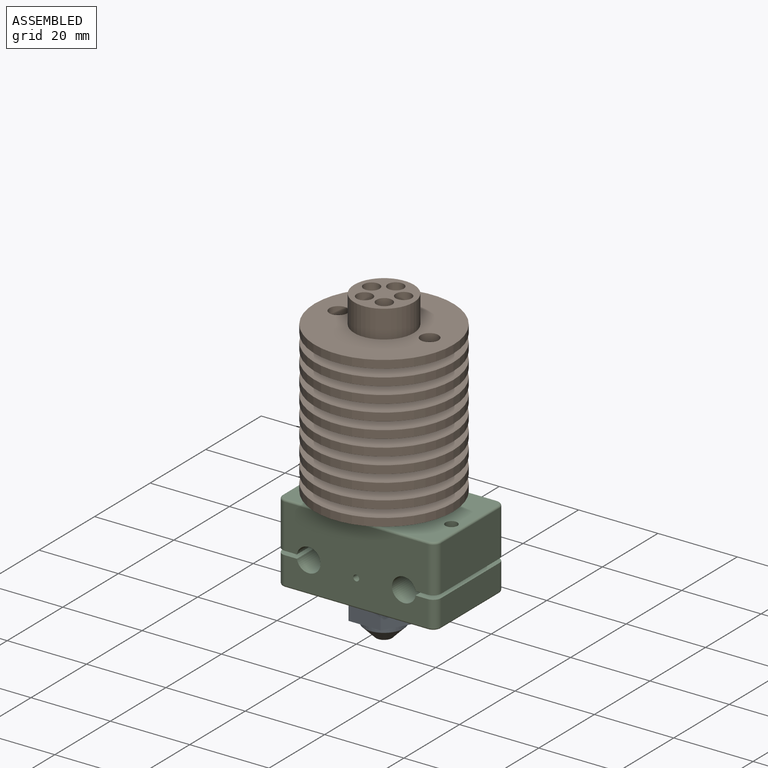
[diagram: assembled view]
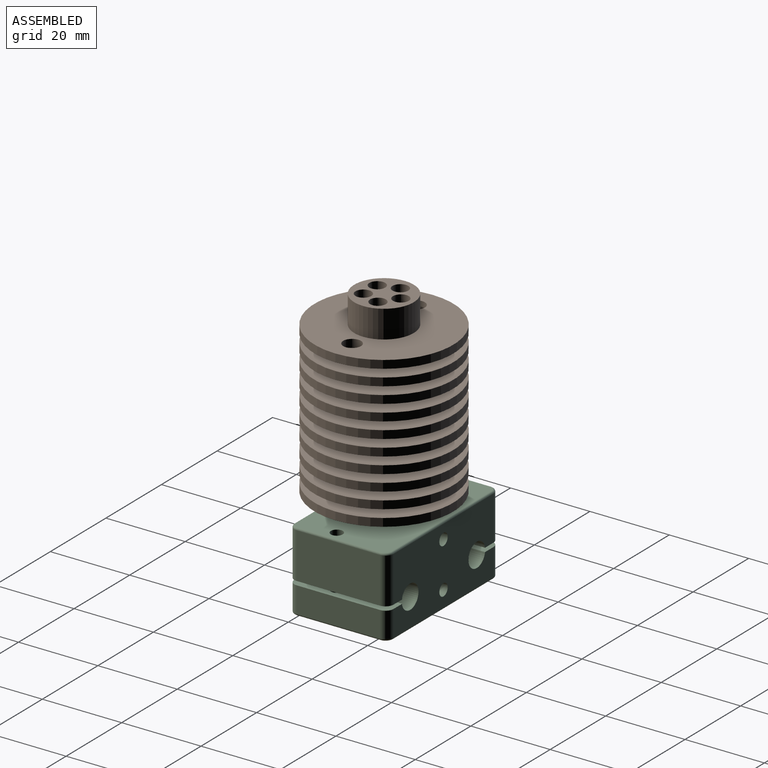
[diagram: assembled view, second angle]
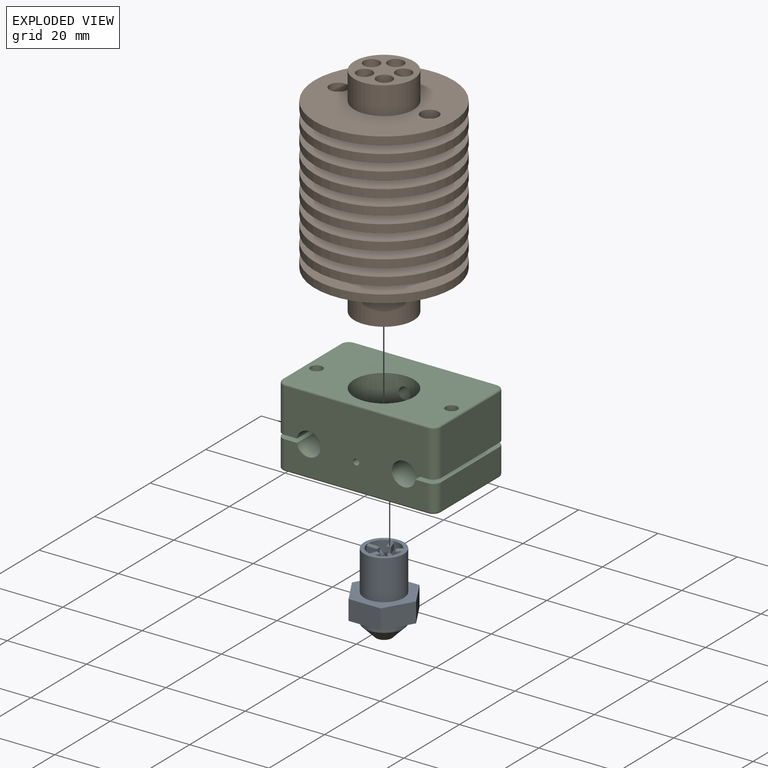
[diagram: exploded view]
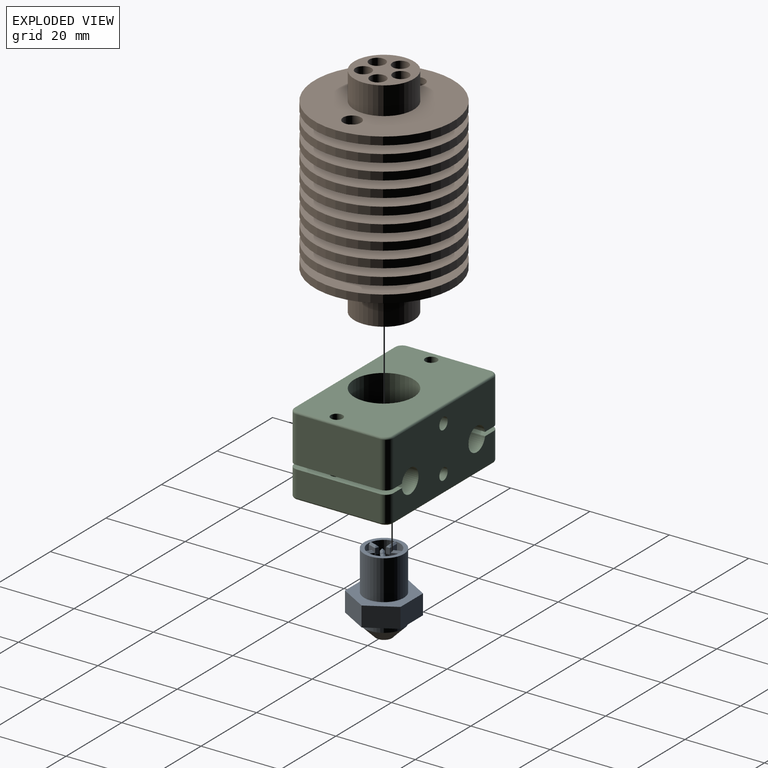
[diagram: exploded view, second angle]
ASSEMBLY  parts=3 mates=3
PART A: 176 faces, bbox 16.2x14x20 mm
  f0: cylinder r=4mm len=8mm, axis (0,0,1), area 143.9mm2, adj f1,f2,f3,f4,f6,f17,f22,f23
  f1: cone r=3.3mm half-angle=57deg, axis (0,0,1), area 3.5mm2, adj f0,f5,f139,f159
  f2: cone r=3.3mm half-angle=57deg, axis (0,0,1), area 3.1mm2, adj f0,f5,f154,f158
  f3: cone r=3.3mm half-angle=57deg, axis (0,0,1), area 2.6mm2, adj f0,f5,f149,f153
  f4: cone r=3.3mm half-angle=57deg, axis (0,0,1), area 2.6mm2, adj f0,f5,f144,f148
  f5: cone r=0.75mm half-angle=24deg, axis (0,0,1), area 75mm2, adj f1,f2,f3,f4,f6,f7,f136,f137
  f6: cone r=3.3mm half-angle=57deg, axis (0,0,1), area 3.1mm2, adj f0,f5,f137,f143
  f7: cylinder r=0.88mm len=7.1mm, axis (0,0,-1), area 39.1mm2, adj f5,f19
  f8: plane 8.08x5mm, normal (0,1,0), area 40.4mm2, adj f9,f13,f14,f15
  f9: plane 7x5mm, normal (-0.87,0.5,0), area 40.4mm2, adj f8,f10,f14,f15
  f10: plane 7x5mm, normal (-0.87,-0.5,0), area 40.4mm2, adj f9,f11,f14,f15
  f11: plane 8.08x5mm, normal (0,-1,0), area 40.4mm2, adj f10,f12,f14,f15
  f12: plane 7x5mm, normal (0.87,-0.5,0), area 40.4mm2, adj f11,f13,f14,f15
  f13: plane 7x5mm, normal (0.87,0.5,0), area 40.4mm2, adj f8,f12,f14,f15
  f14: plane 16.17x14mm, normal (0,0,1), area 91.2mm2, adj f8,f9,f10,f11,f12,f13,f16
  f15: plane 16.17x14mm, normal (0,0,-1), area 91.2mm2, adj f8,f9,f10,f11,f12,f13,f18
  f16: cylinder r=5mm len=10mm, axis (0,0,-1), area 314.2mm2, adj f14,f17
  f17: plane 10x10mm, normal (0,0,1), area 30mm2, adj f0,f16,f41,f42,f43,f44,f45,f46
  f18: cylinder r=5mm len=10mm, axis (0,0,1), area 62.8mm2, adj f15,f20
  f19: plane 4x4mm, normal (0,0,-1), area 10.2mm2, adj f7,f20
  f20: cone r=5mm half-angle=45deg, axis (0,0,1), area 93.3mm2, adj f18,f19
  f21: plane 1.6x1mm, normal (1,0,0), area 1.6mm2, adj f22,f23,f24,f51
  f22: plane 2.57x1.6mm, normal (0,1,0), area 4.1mm2, adj f0,f21,f24,f52
  f23: plane 2.57x1.6mm, normal (0,-1,0), area 4.1mm2, adj f0,f21,f24,f50
  f24: plane 2.6x1mm, normal (0,0,-1), area 2.6mm2, adj f0,f21,f22,f23
  f25: plane 1.6x0.95mm, normal (0.31,0.95,0), area 1.6mm2, adj f26,f27,f28,f54
  f26: plane 2.14x1.6mm, normal (-0.95,0.31,0), area 3.6mm2, adj f0,f25,f28,f55
  f27: plane 2.03x1.6mm, normal (0.95,-0.31,0), area 3.4mm2, adj f0,f25,f28,f53
  f28: plane 2.34x1.65mm, normal (0,0,-1), area 2.2mm2, adj f0,f25,f26,f27
  f29: plane 1.6x0.81mm, normal (-0.81,0.59,0), area 1.6mm2, adj f30,f31,f32,f48
  f30: plane 1.6x1.37mm, normal (-0.59,-0.81,0), area 2.7mm2, adj f0,f29,f32,f49
  f31: plane 1.6x1.31mm, normal (0.59,0.81,0), area 2.6mm2, adj f0,f29,f32,f47
  f32: plane 1.9x1.8mm, normal (0,0,-1), area 1.7mm2, adj f0,f29,f30,f31
  f33: plane 1.6x0.81mm, normal (-0.81,-0.59,0), area 1.6mm2, adj f34,f35,f36,f42
  f34: plane 1.6x1.31mm, normal (0.59,-0.81,0), area 2.6mm2, adj f0,f33,f36,f43
  f35: plane 1.6x1.37mm, normal (-0.59,0.81,0), area 2.7mm2, adj f0,f33,f36,f41
  f36: plane 1.9x1.8mm, normal (0,0,-1), area 1.7mm2, adj f0,f33,f34,f35
  f37: plane 1.6x0.95mm, normal (0.31,-0.95,0), area 1.6mm2, adj f38,f39,f40,f46
  f38: plane 2.03x1.6mm, normal (0.95,0.31,0), area 3.4mm2, adj f0,f37,f40,f44
  f39: plane 2.14x1.6mm, normal (-0.95,-0.31,0), area 3.6mm2, adj f0,f37,f40,f45
  f40: plane 2.34x1.65mm, normal (0,0,-1), area 2.2mm2, adj f0,f37,f38,f39
  f41: plane 1.6x1.08mm, normal (-0.42,0.57,0.71), area 0.8mm2, adj f0,f17,f35,f42
  f42: plane 0.81x0.68mm, normal (-0.57,-0.42,0.71), area 0.3mm2, adj f17,f33,f41,f43
  f43: plane 1.31x1.31mm, normal (0.42,-0.57,0.71), area 0.8mm2, adj f0,f17,f34,f42
  f44: plane 2.03x1.07mm, normal (0.67,0.22,0.71), area 1.1mm2, adj f0,f17,f38,f46
  f45: plane 2.25x0.95mm, normal (-0.67,-0.22,0.71), area 1.2mm2, adj f0,f17,f39,f46
  f46: plane 0.95x0.57mm, normal (0.22,-0.67,0.71), area 0.3mm2, adj f17,f37,f44,f45
  f47: plane 1.31x1.31mm, normal (0.42,0.57,0.71), area 0.8mm2, adj f0,f17,f31,f48
  f48: plane 0.81x0.68mm, normal (-0.57,0.42,0.71), area 0.3mm2, adj f17,f29,f47,f49
  f49: plane 1.6x1.08mm, normal (-0.42,-0.57,0.71), area 0.8mm2, adj f0,f17,f30,f48
  f50: plane 2.6x0.4mm, normal (0,-0.71,0.71), area 1.4mm2, adj f0,f17,f23,f51
  f51: plane 1x0.4mm, normal (0.71,0,0.71), area 0.3mm2, adj f17,f21,f50,f52
  f52: plane 2.6x0.4mm, normal (0,0.71,0.71), area 1.4mm2, adj f0,f17,f22,f51
  f53: plane 2.03x1.07mm, normal (0.67,-0.22,0.71), area 1.1mm2, adj f0,f17,f27,f54
  f54: plane 0.95x0.57mm, normal (0.22,0.67,0.71), area 0.3mm2, adj f17,f25,f53,f55
  f55: plane 2.25x0.95mm, normal (-0.67,0.22,0.71), area 1.2mm2, adj f0,f17,f26,f54
  f56: plane 1.96x1.6mm, normal (0.59,-0.81,0), area 3.9mm2, adj f0,f57,f59,f95
  f57: plane 1.6x0.81mm, normal (0.81,0.59,0), area 1.6mm2, adj f56,f58,f59,f94
  f58: plane 2.02x1.6mm, normal (-0.59,0.81,0), area 4mm2, adj f0,f57,f59,f93
  f59: plane 2.61x2.23mm, normal (0,0,-1), area 2.5mm2, adj f0,f56,f57,f58
  f60: plane 1.82x1.39mm, normal (0,0,1), area 0.4mm2, adj f0,f93,f94,f95
  f61: plane 1.6x0.95mm, normal (-0.31,0.95,0), area 1.6mm2, adj f62,f63,f64,f82
  f62: plane 1.85x1.6mm, normal (-0.95,-0.31,0), area 3.1mm2, adj f0,f61,f64,f83
  f63: plane 1.74x1.6mm, normal (0.95,0.31,0), area 2.9mm2, adj f0,f61,f64,f81
  f64: plane 2.16x1.52mm, normal (0,0,-1), area 1.9mm2, adj f0,f61,f62,f63
  f65: plane 1.52x0.66mm, normal (0,0,1), area 0.3mm2, adj f0,f81,f82,f83
  f66: plane 1.6x1mm, normal (-1,0,0), area 1.6mm2, adj f67,f68,f69,f85
  f67: plane 1.6x1.57mm, normal (0,-1,0), area 2.5mm2, adj f0,f66,f69,f86
  f68: plane 1.6x1.57mm, normal (0,1,0), area 2.5mm2, adj f0,f66,f69,f84
  f69: plane 1.6x1mm, normal (0,0,-1), area 1.6mm2, adj f0,f66,f67,f68
  f70: plane 1.2x0.2mm, normal (0,0,1), area 0.2mm2, adj f0,f84,f85,f86
  f71: plane 1.6x0.95mm, normal (-0.31,-0.95,0), area 1.6mm2, adj f72,f73,f74,f88
  f72: plane 1.74x1.6mm, normal (0.95,-0.31,0), area 2.9mm2, adj f0,f71,f74,f89
  f73: plane 1.85x1.6mm, normal (-0.95,0.31,0), area 3.1mm2, adj f0,f71,f74,f87
  f74: plane 2.16x1.52mm, normal (0,0,-1), area 1.9mm2, adj f0,f71,f72,f73
  f75: plane 1.52x0.66mm, normal (0,0,1), area 0.3mm2, adj f0,f87,f88,f89
  f76: plane 1.6x0.81mm, normal (0.81,-0.59,0), area 1.6mm2, adj f77,f78,f79,f91
  f77: plane 1.96x1.6mm, normal (0.59,0.81,0), area 3.9mm2, adj f0,f76,f79,f92
  f78: plane 2.02x1.6mm, normal (-0.59,-0.81,0), area 4mm2, adj f0,f76,f79,f90
  f79: plane 2.61x2.23mm, normal (0,0,-1), area 2.5mm2, adj f0,f76,f77,f78
  f80: plane 1.82x1.39mm, normal (0,0,1), area 0.4mm2, adj f0,f90,f91,f92
  f81: plane 1.94x0.82mm, normal (0.67,0.22,0.71), area 0.9mm2, adj f0,f63,f65,f82
  f82: plane 0.95x0.57mm, normal (-0.22,0.67,0.71), area 0.3mm2, adj f61,f65,f81,f83
  f83: plane 1.85x0.98mm, normal (-0.67,-0.22,0.71), area 1mm2, adj f0,f62,f65,f82
  f84: plane 1.6x0.4mm, normal (0,0.71,0.71), area 0.8mm2, adj f0,f68,f70,f85
  f85: plane 1x0.4mm, normal (-0.71,0,0.71), area 0.3mm2, adj f66,f70,f84,f86
  f86: plane 1.6x0.4mm, normal (0,-0.71,0.71), area 0.8mm2, adj f0,f67,f70,f85
  f87: plane 1.85x0.98mm, normal (-0.67,0.22,0.71), area 1mm2, adj f0,f73,f75,f88
  f88: plane 0.95x0.57mm, normal (-0.22,-0.67,0.71), area 0.3mm2, adj f71,f75,f87,f89
  f89: plane 1.94x0.82mm, normal (0.67,-0.22,0.71), area 0.9mm2, adj f0,f72,f75,f88
  f90: plane 2.02x1.79mm, normal (-0.42,-0.57,0.71), area 1.3mm2, adj f0,f78,f80,f91
  f91: plane 0.81x0.68mm, normal (0.57,-0.42,0.71), area 0.3mm2, adj f76,f80,f90,f92
  f92: plane 2.25x1.52mm, normal (0.42,0.57,0.71), area 1.3mm2, adj f0,f77,f80,f91
  f93: plane 2.02x1.79mm, normal (-0.42,0.57,0.71), area 1.3mm2, adj f0,f58,f60,f94
  f94: plane 0.81x0.68mm, normal (0.57,0.42,0.71), area 0.3mm2, adj f57,f60,f93,f95
  f95: plane 2.25x1.52mm, normal (0.42,-0.57,0.71), area 1.3mm2, adj f0,f56,f60,f94
  f96: plane 1.6x1mm, normal (1,0,0), area 1.6mm2, adj f97,f98,f99,f134
  f97: plane 2.57x1.6mm, normal (0,1,0), area 4.1mm2, adj f0,f96,f99,f133
  f98: plane 2.57x1.6mm, normal (0,-1,0), area 4.1mm2, adj f0,f96,f99,f135
  f99: plane 2.6x1mm, normal (0,0,-1), area 2.6mm2, adj f0,f96,f97,f98
  f100: plane 2.2x0.2mm, normal (0,0,1), area 0.4mm2, adj f0,f133,f134,f135
  f101: plane 1.6x0.95mm, normal (0.31,0.95,0), area 1.6mm2, adj f102,f103,f104,f128
  f102: plane 2.14x1.6mm, normal (-0.95,0.31,0), area 3.6mm2, adj f0,f101,f104,f127
  f103: plane 2.03x1.6mm, normal (0.95,-0.31,0), area 3.4mm2, adj f0,f101,f104,f129
  f104: plane 2.34x1.65mm, normal (0,0,-1), area 2.2mm2, adj f0,f101,f102,f103
  f105: plane 1.79x0.76mm, normal (0,0,1), area 0.4mm2, adj f0,f127,f128,f129
  f106: plane 1.6x0.81mm, normal (-0.81,0.59,0), area 1.6mm2, adj f107,f108,f109,f125
  f107: plane 1.6x1.37mm, normal (-0.59,-0.81,0), area 2.7mm2, adj f0,f106,f109,f124
  f108: plane 1.6x1.31mm, normal (0.59,0.81,0), area 2.6mm2, adj f0,f106,f109,f126
  f109: plane 1.9x1.8mm, normal (0,0,-1), area 1.7mm2, adj f0,f106,f107,f108
  f110: plane 1.15x0.92mm, normal (0,0,1), area 0.3mm2, adj f0,f124,f125,f126
  f111: plane 1.6x0.81mm, normal (-0.81,-0.59,0), area 1.6mm2, adj f112,f113,f114,f122
  f112: plane 1.6x1.31mm, normal (0.59,-0.81,0), area 2.6mm2, adj f0,f111,f114,f121
  f113: plane 1.6x1.37mm, normal (-0.59,0.81,0), area 2.7mm2, adj f0,f111,f114,f123
  f114: plane 1.9x1.8mm, normal (0,0,-1), area 1.7mm2, adj f0,f111,f112,f113
  f115: plane 1.15x0.92mm, normal (0,0,1), area 0.3mm2, adj f0,f121,f122,f123
  f116: plane 1.6x0.95mm, normal (0.31,-0.95,0), area 1.6mm2, adj f117,f118,f119,f131
  f117: plane 2.03x1.6mm, normal (0.95,0.31,0), area 3.4mm2, adj f0,f116,f119,f132
  f118: plane 2.14x1.6mm, normal (-0.95,-0.31,0), area 3.6mm2, adj f0,f116,f119,f130
  f119: plane 2.34x1.65mm, normal (0,0,-1), area 2.2mm2, adj f0,f116,f117,f118
  f120: plane 1.79x0.76mm, normal (0,0,1), area 0.4mm2, adj f0,f130,f131,f132
  f121: plane 1.31x1.31mm, normal (0.42,-0.57,0.71), area 0.8mm2, adj f0,f112,f115,f122
  f122: plane 0.81x0.68mm, normal (-0.57,-0.42,0.71), area 0.3mm2, adj f111,f115,f121,f123
  f123: plane 1.6x1.08mm, normal (-0.42,0.57,0.71), area 0.8mm2, adj f0,f113,f115,f122
  f124: plane 1.6x1.08mm, normal (-0.42,-0.57,0.71), area 0.8mm2, adj f0,f107,f110,f125
  f125: plane 0.81x0.68mm, normal (-0.57,0.42,0.71), area 0.3mm2, adj f106,f110,f124,f126
  f126: plane 1.31x1.31mm, normal (0.42,0.57,0.71), area 0.8mm2, adj f0,f108,f110,f125
  f127: plane 2.25x0.95mm, normal (-0.67,0.22,0.71), area 1.2mm2, adj f0,f102,f105,f128
  f128: plane 0.95x0.57mm, normal (0.22,0.67,0.71), area 0.3mm2, adj f101,f105,f127,f129
  f129: plane 2.03x1.07mm, normal (0.67,-0.22,0.71), area 1.1mm2, adj f0,f103,f105,f128
  f130: plane 2.25x0.95mm, normal (-0.67,-0.22,0.71), area 1.2mm2, adj f0,f118,f120,f131
  f131: plane 0.95x0.57mm, normal (0.22,-0.67,0.71), area 0.3mm2, adj f116,f120,f130,f132
  f132: plane 2.03x1.07mm, normal (0.67,0.22,0.71), area 1.1mm2, adj f0,f117,f120,f131
  f133: plane 2.6x0.4mm, normal (0,0.71,0.71), area 1.4mm2, adj f0,f97,f100,f134
  f134: plane 1x0.4mm, normal (0.71,0,0.71), area 0.3mm2, adj f96,f100,f133,f135
  f135: plane 2.6x0.4mm, normal (0,-0.71,0.71), area 1.4mm2, adj f0,f98,f100,f134
  f136: plane 1.84x1.66mm, normal (0,0,-1), area 1.5mm2, adj f5,f137,f138,f139
  f137: plane 1.98x1.62mm, normal (0.59,-0.81,0), area 3.3mm2, adj f0,f5,f6,f136,f138,f173
  f138: plane 1.6x0.81mm, normal (0.81,0.59,0), area 1.6mm2, adj f136,f137,f139,f174
  f139: plane 2.03x1.6mm, normal (-0.59,0.81,0), area 3.4mm2, adj f0,f1,f5,f136,f138,f175
  f140: plane 1.82x1.39mm, normal (0,0,1), area 0.4mm2, adj f0,f173,f174,f175
  f141: plane 1.26x1.21mm, normal (0,0,-1), area 0.9mm2, adj f5,f142,f143,f144
  f142: plane 1.6x0.95mm, normal (-0.31,0.95,0), area 1.6mm2, adj f141,f143,f144,f171
  f143: plane 1.85x1.6mm, normal (-0.95,-0.31,0), area 2.5mm2, adj f0,f5,f6,f141,f142,f172
  f144: plane 1.75x1.62mm, normal (0.95,0.31,0), area 2.3mm2, adj f0,f4,f5,f141,f142,f170
  f145: plane 1.52x0.66mm, normal (0,0,1), area 0.3mm2, adj f0,f170,f171,f172
  f146: plane 1x0.65mm, normal (0,0,-1), area 0.6mm2, adj f5,f147,f148,f149
  f147: plane 1.6x1mm, normal (-1,0,0), area 1.6mm2, adj f146,f148,f149,f162
  f148: plane 1.61x1.58mm, normal (0,-1,0), area 1.9mm2, adj f0,f4,f5,f146,f147,f161
  f149: plane 1.61x1.58mm, normal (0,1,0), area 1.9mm2, adj f0,f3,f5,f146,f147,f163
  f150: plane 1.2x0.2mm, normal (0,0,1), area 0.2mm2, adj f0,f161,f162,f163
  f151: plane 1.26x1.21mm, normal (0,0,-1), area 0.9mm2, adj f5,f152,f153,f154
  f152: plane 1.6x0.95mm, normal (-0.31,-0.95,0), area 1.6mm2, adj f151,f153,f154,f165
  f153: plane 1.75x1.62mm, normal (0.95,-0.31,0), area 2.3mm2, adj f0,f3,f5,f151,f152,f166
  f154: plane 1.85x1.6mm, normal (-0.95,0.31,0), area 2.5mm2, adj f0,f2,f5,f151,f152,f164
  f155: plane 1.52x0.66mm, normal (0,0,1), area 0.3mm2, adj f0,f164,f165,f166
  f156: plane 1.84x1.66mm, normal (0,0,-1), area 1.5mm2, adj f5,f157,f158,f159
  f157: plane 1.6x0.81mm, normal (0.81,-0.59,0), area 1.6mm2, adj f156,f158,f159,f168
  f158: plane 1.98x1.62mm, normal (0.59,0.81,0), area 3.3mm2, adj f0,f2,f5,f156,f157,f169
  f159: plane 2.03x1.6mm, normal (-0.59,-0.81,0), area 3.4mm2, adj f0,f1,f5,f156,f157,f167
  f160: plane 1.82x1.39mm, normal (0,0,1), area 0.4mm2, adj f0,f167,f168,f169
  f161: plane 1.6x0.4mm, normal (0,-0.71,0.71), area 0.8mm2, adj f0,f148,f150,f162
  f162: plane 1x0.4mm, normal (-0.71,0,0.71), area 0.3mm2, adj f147,f150,f161,f163
  f163: plane 1.6x0.4mm, normal (0,0.71,0.71), area 0.8mm2, adj f0,f149,f150,f162
  f164: plane 1.85x0.98mm, normal (-0.67,0.22,0.71), area 1mm2, adj f0,f154,f155,f165
  f165: plane 0.95x0.57mm, normal (-0.22,-0.67,0.71), area 0.3mm2, adj f152,f155,f164,f166
  f166: plane 1.94x0.82mm, normal (0.67,-0.22,0.71), area 0.9mm2, adj f0,f153,f155,f165
  f167: plane 2.02x1.79mm, normal (-0.42,-0.57,0.71), area 1.3mm2, adj f0,f159,f160,f168
  f168: plane 0.81x0.68mm, normal (0.57,-0.42,0.71), area 0.3mm2, adj f157,f160,f167,f169
  f169: plane 2.25x1.52mm, normal (0.42,0.57,0.71), area 1.3mm2, adj f0,f158,f160,f168
  f170: plane 1.94x0.82mm, normal (0.67,0.22,0.71), area 0.9mm2, adj f0,f144,f145,f171
  f171: plane 0.95x0.57mm, normal (-0.22,0.67,0.71), area 0.3mm2, adj f142,f145,f170,f172
  f172: plane 1.85x0.98mm, normal (-0.67,-0.22,0.71), area 1mm2, adj f0,f143,f145,f171
  f173: plane 2.25x1.52mm, normal (0.42,-0.57,0.71), area 1.3mm2, adj f0,f137,f140,f174
  f174: plane 0.81x0.68mm, normal (0.57,0.42,0.71), area 0.3mm2, adj f138,f140,f173,f175
  f175: plane 2.02x1.79mm, normal (-0.42,0.57,0.71), area 1.3mm2, adj f0,f139,f140,f174
PART B: 68 faces, bbox 35x35x55 mm
  f0: cylinder r=7.5mm len=15mm, axis (0,0,-1), area 329.9mm2, adj f16,f44
  f1: cylinder r=7.5mm len=15mm, axis (0,0,-1), area 94.2mm2, adj f41,f45
  f2: cylinder r=7.5mm len=15mm, axis (0,0,-1), area 94.2mm2, adj f38,f42
  f3: cylinder r=7.5mm len=15mm, axis (0,0,-1), area 94.2mm2, adj f35,f39
  f4: cylinder r=7.5mm len=15mm, axis (0,0,-1), area 94.2mm2, adj f32,f36
  f5: cylinder r=7.5mm len=15mm, axis (0,0,-1), area 94.2mm2, adj f29,f33
  f6: cylinder r=7.5mm len=15mm, axis (0,0,-1), area 94.2mm2, adj f26,f30
  f7: cylinder r=7.5mm len=15mm, axis (0,0,-1), area 94.2mm2, adj f23,f27
  f8: cylinder r=7.5mm len=15mm, axis (0,0,-1), area 94.2mm2, adj f20,f24
  f9: cylinder r=7.5mm len=15mm, axis (0,0,-1), area 94.2mm2, adj f19,f21
  f10: cylinder r=2mm len=55mm, axis (0,0,-1), area 691.2mm2, adj f16,f47
  f11: cylinder r=2mm len=55mm, axis (0,0,-1), area 691.2mm2, adj f16,f47
  f12: cylinder r=2mm len=55mm, axis (0,0,-1), area 691.2mm2, adj f16,f47
  f13: cylinder r=2mm len=55mm, axis (0,0,-1), area 691.2mm2, adj f16,f47
  f14: cylinder r=2mm len=55mm, axis (0,0,-1), area 691.2mm2, adj f16,f47
  f15: cylinder r=7.5mm len=15mm, axis (0,0,-1), area 471.2mm2, adj f17,f47
  f16: plane 15x15mm, normal (0,0,1), area 113.9mm2, adj f0,f10,f11,f12,f13,f14
  f17: plane 35x35mm, normal (0,0,-1), area 779.1mm2, adj f15,f18,f54,f55
  f18: cylinder r=17.5mm len=35mm, axis (0,0,-1), area 219.9mm2, adj f17,f19
  f19: plane 35x35mm, normal (0,0,1), area 779.1mm2, adj f9,f18,f54,f55
  f20: plane 35x35mm, normal (0,0,1), area 779.1mm2, adj f8,f22,f52,f53
  f21: plane 35x35mm, normal (0,0,-1), area 779.1mm2, adj f9,f22,f52,f53
  f22: cylinder r=17.5mm len=35mm, axis (0,0,-1), area 219.9mm2, adj f20,f21
  f23: plane 35x35mm, normal (0,0,1), area 779.1mm2, adj f7,f25,f50,f51
  f24: plane 35x35mm, normal (0,0,-1), area 779.1mm2, adj f8,f25,f50,f51
  f25: cylinder r=17.5mm len=35mm, axis (0,0,-1), area 219.9mm2, adj f23,f24
  f26: plane 35x35mm, normal (0,0,1), area 779.1mm2, adj f6,f28,f48,f49
  f27: plane 35x35mm, normal (0,0,-1), area 779.1mm2, adj f7,f28,f48,f49
  f28: cylinder r=17.5mm len=35mm, axis (0,0,-1), area 219.9mm2, adj f26,f27
  f29: plane 35x35mm, normal (0,0,1), area 753.6mm2, adj f5,f31,f66,f67
  f30: plane 35x35mm, normal (0,0,-1), area 753.6mm2, adj f6,f31,f66,f67
  f31: cylinder r=17.5mm len=35mm, axis (0,0,-1), area 219.9mm2, adj f29,f30
  f32: plane 35x35mm, normal (0,0,1), area 753.6mm2, adj f4,f34,f64,f65
  f33: plane 35x35mm, normal (0,0,-1), area 753.6mm2, adj f5,f34,f64,f65
  f34: cylinder r=17.5mm len=35mm, axis (0,0,-1), area 219.9mm2, adj f32,f33
  f35: plane 35x35mm, normal (0,0,1), area 753.6mm2, adj f3,f37,f62,f63
  f36: plane 35x35mm, normal (0,0,-1), area 753.6mm2, adj f4,f37,f62,f63
  f37: cylinder r=17.5mm len=35mm, axis (0,0,-1), area 219.9mm2, adj f35,f36
  f38: plane 35x35mm, normal (0,0,1), area 753.6mm2, adj f2,f40,f60,f61
  f39: plane 35x35mm, normal (0,0,-1), area 753.6mm2, adj f3,f40,f60,f61
  f40: cylinder r=17.5mm len=35mm, axis (0,0,-1), area 219.9mm2, adj f38,f39
  f41: plane 35x35mm, normal (0,0,1), area 753.6mm2, adj f1,f43,f58,f59
  f42: plane 35x35mm, normal (0,0,-1), area 753.6mm2, adj f2,f43,f58,f59
  f43: cylinder r=17.5mm len=35mm, axis (0,0,-1), area 219.9mm2, adj f41,f42
  f44: plane 35x35mm, normal (0,0,1), area 753.6mm2, adj f0,f46,f56,f57
  f45: plane 35x35mm, normal (0,0,-1), area 753.6mm2, adj f1,f46,f56,f57
  f46: cylinder r=17.5mm len=35mm, axis (0,0,-1), area 219.9mm2, adj f44,f45
  f47: plane 15x15mm, normal (0,0,-1), area 113.9mm2, adj f10,f11,f12,f13,f14,f15
  f48: cylinder r=1mm len=2mm, axis (0,0,1), area 12.6mm2, adj f26,f27
  f49: cylinder r=1mm len=2mm, axis (0,0,1), area 12.6mm2, adj f26,f27
  f50: cylinder r=1mm len=2mm, axis (0,0,1), area 12.6mm2, adj f23,f24
  f51: cylinder r=1mm len=2mm, axis (0,0,1), area 12.6mm2, adj f23,f24
  f52: cylinder r=1mm len=2mm, axis (0,0,1), area 12.6mm2, adj f20,f21
  f53: cylinder r=1mm len=2mm, axis (0,0,1), area 12.6mm2, adj f20,f21
  f54: cylinder r=1mm len=2mm, axis (0,0,1), area 12.6mm2, adj f17,f19
  f55: cylinder r=1mm len=2mm, axis (0,0,1), area 12.6mm2, adj f17,f19
  f56: cylinder r=2.25mm len=4.5mm, axis (0,0,1), area 28.3mm2, adj f44,f45
  f57: cylinder r=2.25mm len=4.5mm, axis (0,0,1), area 28.3mm2, adj f44,f45
  f58: cylinder r=2.25mm len=4.5mm, axis (0,0,1), area 28.3mm2, adj f41,f42
  f59: cylinder r=2.25mm len=4.5mm, axis (0,0,1), area 28.3mm2, adj f41,f42
  f60: cylinder r=2.25mm len=4.5mm, axis (0,0,1), area 28.3mm2, adj f38,f39
  f61: cylinder r=2.25mm len=4.5mm, axis (0,0,1), area 28.3mm2, adj f38,f39
  f62: cylinder r=2.25mm len=4.5mm, axis (0,0,1), area 28.3mm2, adj f35,f36
  f63: cylinder r=2.25mm len=4.5mm, axis (0,0,1), area 28.3mm2, adj f35,f36
  f64: cylinder r=2.25mm len=4.5mm, axis (0,0,1), area 28.3mm2, adj f32,f33
  f65: cylinder r=2.25mm len=4.5mm, axis (0,0,1), area 28.3mm2, adj f32,f33
  f66: cylinder r=2.25mm len=4.5mm, axis (0,0,1), area 28.3mm2, adj f29,f30
  f67: cylinder r=2.25mm len=4.5mm, axis (0,0,1), area 28.3mm2, adj f29,f30
PART C: 51 faces, bbox 40.3x25.3x20 mm
  f0: cylinder r=7.5mm len=15mm, axis (0,0,1), area 322.8mm2, adj f10,f46,f50
  f1: cylinder r=5mm len=11.5mm, axis (0,0,-1), area 355.3mm2, adj f11,f46,f47,f48
  f2: plane 21x6.87mm, normal (-1,0,0), area 144.3mm2, adj f15,f22,f23,f38
  f3: plane 36x19mm, normal (0,1,0), area 607.3mm2, adj f4,f6,f12,f13,f14,f15,f22,f24
  f4: cylinder r=3mm len=25mm, axis (0,-1,0), area 446.1mm2, adj f3,f9,f14,f15
  f5: plane 21x6.5mm, normal (1,0,0), area 136.5mm2, adj f12,f24,f25,f45
  f6: cylinder r=3mm len=25mm, axis (0,-1,0), area 446.1mm2, adj f3,f9,f12,f13
  f7: plane 21x11.5mm, normal (1,0,0), area 241.5mm2, adj f13,f26,f29,f37
  f8: plane 21x11.13mm, normal (-1,0,0), area 233.7mm2, adj f14,f27,f28,f30
  f9: plane 36x19mm, normal (0,-1,0), area 619.7mm2, adj f4,f6,f12,f13,f14,f15,f21,f23
  f10: plane 39x24mm, normal (0,0,1), area 743.2mm2, adj f0,f17,f18,f30,f31,f32,f33,f34
  f11: plane 39x24mm, normal (0,0,-1), area 841.4mm2, adj f1,f16,f19,f38,f39,f40,f41,f42
  f12: plane 25x5.04mm, normal (0,0,1), area 117.3mm2, adj f3,f5,f6,f9,f19,f24,f25
  f13: plane 25x5.04mm, normal (0,0,-1), area 117.3mm2, adj f3,f6,f7,f9,f18,f26,f29
  f14: plane 25x5.04mm, normal (0,0,-1), area 117.3mm2, adj f3,f4,f8,f9,f17,f27,f28
  f15: plane 25x5.04mm, normal (0,0,1), area 117.3mm2, adj f2,f3,f4,f9,f16,f22,f23
  f16: cylinder r=1.5mm len=7.37mm, axis (0,0,-1), area 69.5mm2, adj f11,f15
  f17: cylinder r=1.5mm len=11.63mm, axis (0,0,-1), area 109.6mm2, adj f10,f14
  f18: cylinder r=1.5mm len=12mm, axis (0,0,-1), area 113.1mm2, adj f10,f13
  f19: cylinder r=1.5mm len=7mm, axis (0,0,-1), area 66mm2, adj f11,f12
  f20: cone r=0mm half-angle=59deg, axis (0,-1,0), area 2.1mm2, adj f21
  f21: cylinder r=0.75mm len=3mm, axis (0,-1,0), area 14.1mm2, adj f9,f20
  f22: cylinder r=2mm len=6.87mm, axis (0,0,-1), area 21.6mm2, adj f2,f3,f15,f39
  f23: cylinder r=2mm len=6.87mm, axis (0,0,1), area 21.6mm2, adj f2,f9,f15,f40
  f24: cylinder r=2mm len=6.5mm, axis (0,0,1), area 20.4mm2, adj f3,f5,f12,f43
  f25: cylinder r=2mm len=6.5mm, axis (0,0,-1), area 20.4mm2, adj f5,f9,f12,f44
  f26: cylinder r=2mm len=11.5mm, axis (0,0,1), area 36.1mm2, adj f3,f7,f13,f35
  f27: cylinder r=2mm len=11.13mm, axis (0,0,-1), area 35mm2, adj f3,f8,f14,f31
  f28: cylinder r=2mm len=11.13mm, axis (0,0,1), area 35mm2, adj f8,f9,f14,f32
  f29: cylinder r=2mm len=11.5mm, axis (0,0,-1), area 36.1mm2, adj f7,f9,f13,f36
  f30: cylinder r=0.5mm len=21mm, axis (0,1,0), area 16.5mm2, adj f8,f10,f31,f32
  f31: torus R=1.5mm, axis (0,0,1), area 2.2mm2, adj f10,f27,f30,f33
  f32: torus R=1.5mm, axis (0,0,1), area 2.2mm2, adj f10,f28,f30,f34
  f33: cylinder r=0.5mm len=36mm, axis (1,0,0), area 28.3mm2, adj f3,f10,f31,f35
  f34: cylinder r=0.5mm len=36mm, axis (-1,0,0), area 28.3mm2, adj f9,f10,f32,f36
  f35: torus R=1.5mm, axis (0,0,1), area 2.2mm2, adj f10,f26,f33,f37
  f36: torus R=1.5mm, axis (0,0,1), area 2.2mm2, adj f10,f29,f34,f37
  f37: cylinder r=0.5mm len=21mm, axis (0,-1,0), area 16.5mm2, adj f7,f10,f35,f36
  f38: cylinder r=0.5mm len=21mm, axis (0,-1,0), area 16.5mm2, adj f2,f11,f39,f40
  f39: torus R=1.5mm, axis (0,0,1), area 2.2mm2, adj f11,f22,f38,f41
  f40: torus R=1.5mm, axis (0,0,1), area 2.2mm2, adj f11,f23,f38,f42
  f41: cylinder r=0.5mm len=36mm, axis (-1,0,0), area 28.3mm2, adj f3,f11,f39,f43
  f42: cylinder r=0.5mm len=36mm, axis (1,0,0), area 28.3mm2, adj f9,f11,f40,f44
  f43: torus R=1.5mm, axis (0,0,1), area 2.2mm2, adj f11,f24,f41,f45
  f44: torus R=1.5mm, axis (0,0,1), area 2.2mm2, adj f11,f25,f42,f45
  f45: cylinder r=0.5mm len=21mm, axis (0,1,0), area 16.5mm2, adj f5,f11,f43,f44
  f46: cone r=0mm half-angle=59deg, axis (0,0,1), area 114.5mm2, adj f0,f1
  f47: cone r=0mm half-angle=59deg, axis (0,1,0), area 0.7mm2, adj f1,f49
  f48: cone r=0mm half-angle=59deg, axis (0,1,0), area 0.7mm2, adj f1,f49
  f49: cylinder r=1.5mm len=10mm, axis (0,1,0), area 94.2mm2, adj f3,f47,f48
  f50: cylinder r=1.5mm len=7.65mm, axis (0,1,0), area 71.4mm2, adj f0,f3
PLACE A t=(1.54,-20.8,-23.09)mm
PLACE B t=(1.54,-20.8,-0.09)mm
PLACE C t=(1.54,-20.8,-18.09)mm fixed
MATE fastened A.f16 <-> C.f0  axis (0,0,1) through (1.54,-20.8,-18.09)mm
MATE planar B.f0 <-> C.f0  axis (0,0,-1) through (1.54,-20.8,-5.09)mm
MATE revolute B.f0 <-> C.f0  axis (0,0,-1) through (1.54,-20.8,-5.09)mm
